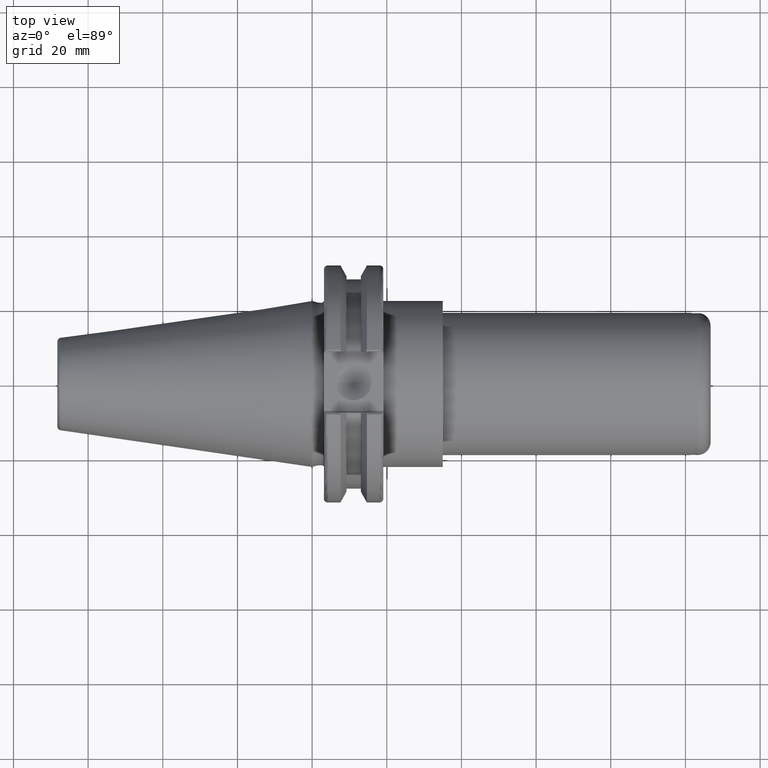
[diagram: clean part render]
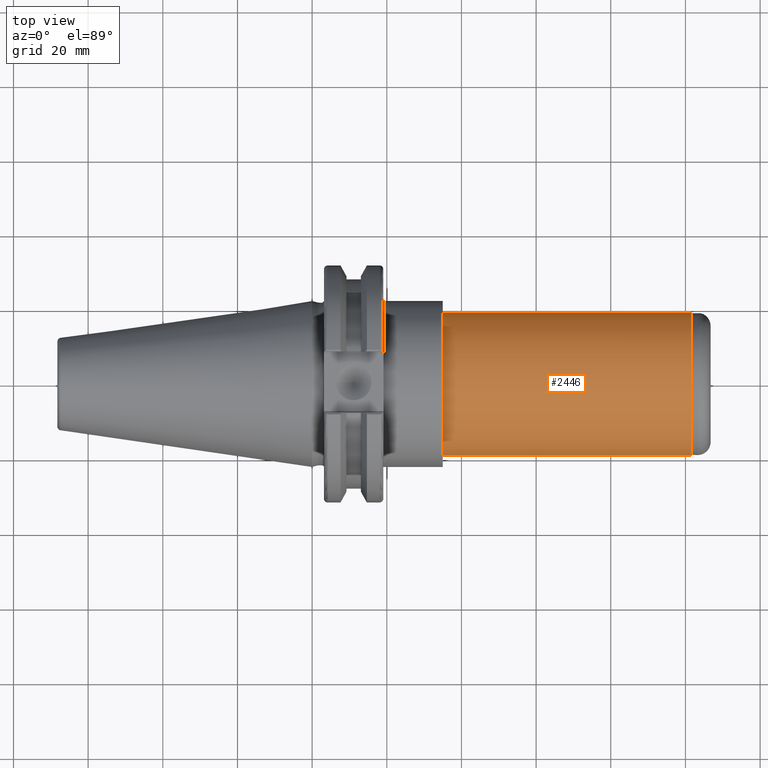
[diagram: same view with one face highlighted and labeled with its STEP entity id]
A machine part, top view. The second image highlights one B-rep face of the part: STEP entity #2446.
In plain terms, the highlighted cylindrical surface (bore or boss wall) has radius 19.05 mm, axis along (1, 0, 0).
Its self-contained STEP definition (entity closure, byte-faithful):
#522=CYLINDRICAL_SURFACE('',#2774,19.05);
#588=CIRCLE('',#2759,19.05);
#596=CIRCLE('',#2773,19.05);
#727=FACE_OUTER_BOUND('',#852,.T.);
#852=EDGE_LOOP('',(#1825,#1826,#1827,#1828));
#992=LINE('',#3816,#1141);
#1141=VECTOR('',#3101,19.05);
#1287=VERTEX_POINT('',#3787);
#1295=VERTEX_POINT('',#3813);
#1490=EDGE_CURVE('',#1287,#1287,#588,.T.);
#1502=EDGE_CURVE('',#1295,#1295,#596,.T.);
#1503=EDGE_CURVE('',#1287,#1295,#992,.T.);
#1825=ORIENTED_EDGE('',*,*,#1490,.F.);
#1826=ORIENTED_EDGE('',*,*,#1503,.T.);
#1827=ORIENTED_EDGE('',*,*,#1502,.T.);
#1828=ORIENTED_EDGE('',*,*,#1503,.F.);
#2446=ADVANCED_FACE('',(#727),#522,.T.);
#2759=AXIS2_PLACEMENT_3D('',#3788,#3065,#3066);
#2773=AXIS2_PLACEMENT_3D('',#3814,#3097,#3098);
#2774=AXIS2_PLACEMENT_3D('',#3815,#3099,#3100);
#3065=DIRECTION('center_axis',(1.,0.,0.));
#3066=DIRECTION('ref_axis',(0.,0.,-1.));
#3097=DIRECTION('center_axis',(1.,0.,0.));
#3098=DIRECTION('ref_axis',(0.,0.,-1.));
#3099=DIRECTION('center_axis',(1.,0.,0.));
#3100=DIRECTION('ref_axis',(0.,1.,0.));
#3101=DIRECTION('',(-1.,0.,0.));
#3787=CARTESIAN_POINT('',(101.6,-19.05,-2.33295215237571E-15));
#3788=CARTESIAN_POINT('Origin',(101.6,0.,0.));
#3813=CARTESIAN_POINT('',(35.,-19.05,-2.33295215237571E-15));
#3814=CARTESIAN_POINT('Origin',(35.,0.,0.));
#3815=CARTESIAN_POINT('Origin',(68.3,0.,0.));
#3816=CARTESIAN_POINT('',(68.3,-19.05,-2.33295215237571E-15));